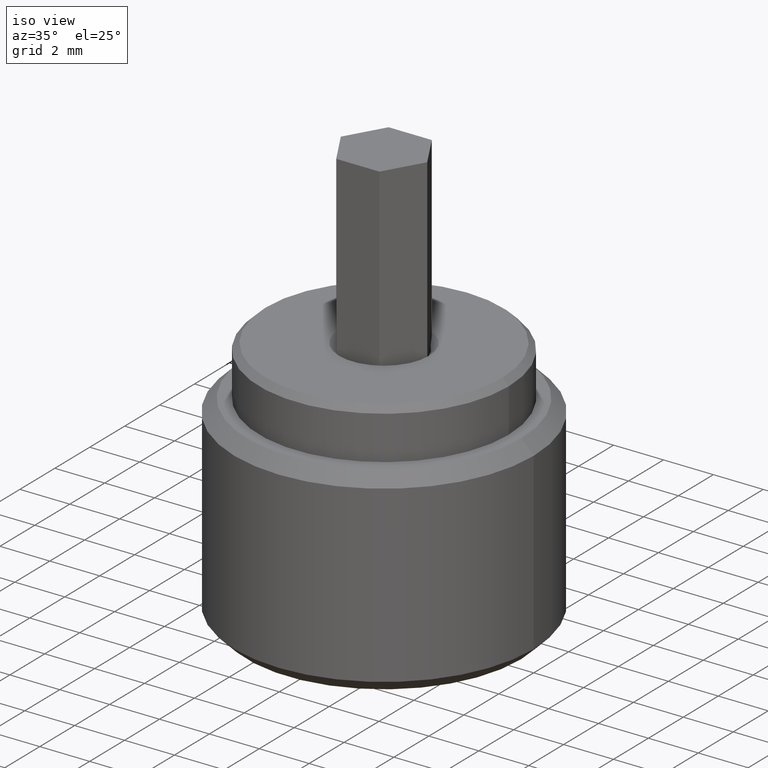
[diagram: clean part render]
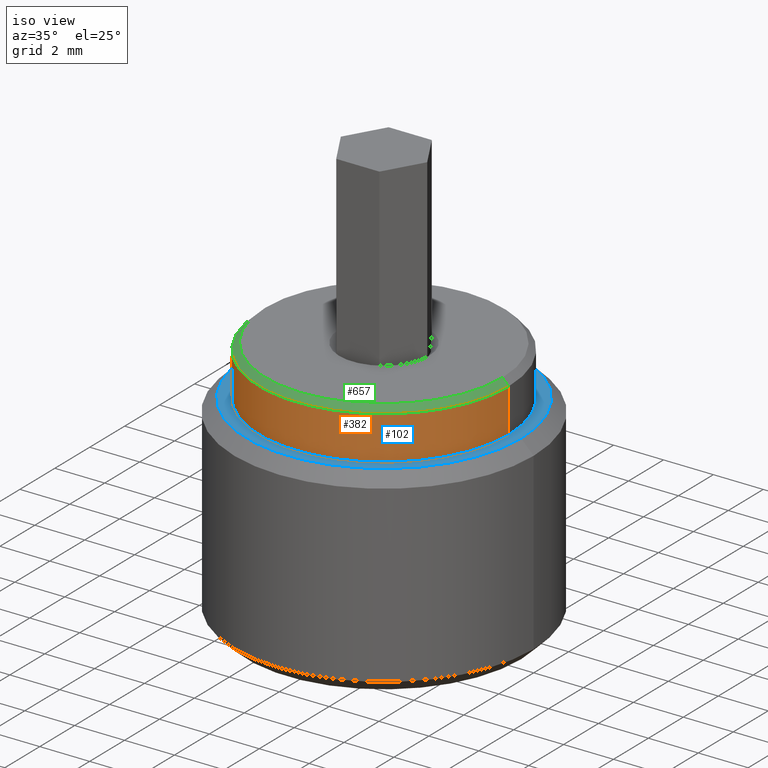
[diagram: same view with three faces highlighted in distinct colors, each labeled with its STEP entity id]
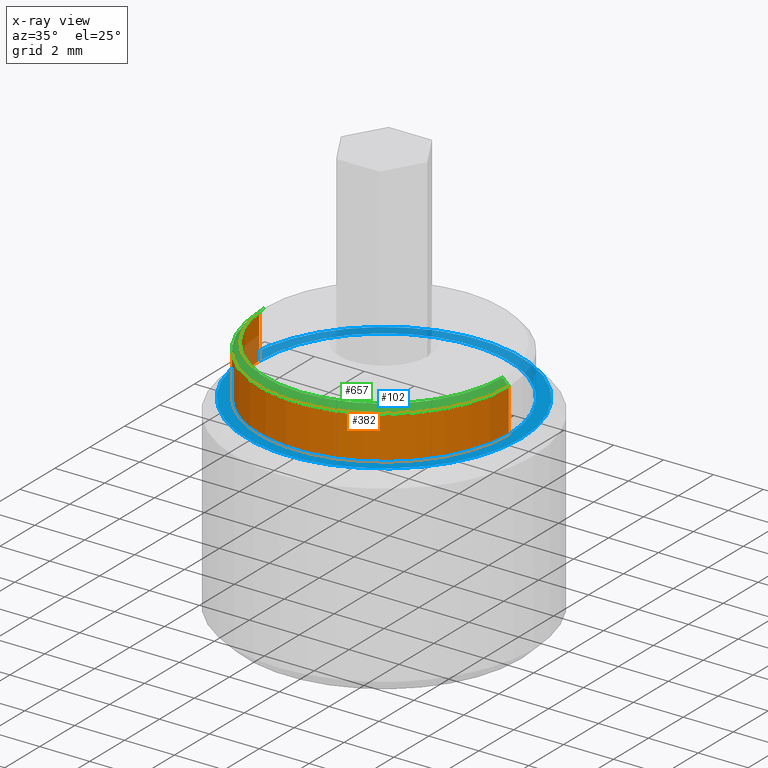
[diagram: x-ray of the same camera — body ghosted, the three highlighted faces saturated]
A machine part, iso view with three faces highlighted in distinct colors.
The next image is the same camera in x-ray (body ghosted, the three faces saturated) — at least one of them is partly hidden behind the body in this view.
Their STEP definitions:

[orange] entity #382 — the highlighted cylindrical surface (partial cylindrical patch) has radius 5 mm, axis along (0, 0, 1).
#32 = DIRECTION ( 'NONE',  ( -0.000000000000000000, -0.000000000000000000, -1.000000000000000000 ) ) ;
#48 = VERTEX_POINT ( 'NONE', #879 ) ;
#79 = EDGE_CURVE ( 'NONE', #891, #48, #868, .T. ) ;
#93 = FACE_OUTER_BOUND ( 'NONE', #972, .T. ) ;
#94 = VERTEX_POINT ( 'NONE', #268 ) ;
#96 = EDGE_CURVE ( 'NONE', #891, #94, #798, .T. ) ;
#155 = EDGE_CURVE ( 'NONE', #94, #441, #818, .T. ) ;
#223 = DIRECTION ( 'NONE',  ( -0.000000000000000000, -0.000000000000000000, 1.000000000000000000 ) ) ;
#231 = ORIENTED_EDGE ( 'NONE', *, *, #903, .F. ) ;
#268 = CARTESIAN_POINT ( 'NONE',  ( 5.000000000000000000, 0.000000000000000000, 9.750000000000005329 ) ) ;
#322 = DIRECTION ( 'NONE',  ( -0.000000000000000000, -0.000000000000000000, 1.000000000000000000 ) ) ;
#332 = AXIS2_PLACEMENT_3D ( 'NONE', #724, #32, #494 ) ;
#355 = ORIENTED_EDGE ( 'NONE', *, *, #96, .T. ) ;
#381 = CARTESIAN_POINT ( 'NONE',  ( 0.000000000000000000, 0.000000000000000000, 9.750000000000005329 ) ) ;
#382 = ADVANCED_FACE ( 'NONE', ( #93 ), #857, .T. ) ;
#393 = DIRECTION ( 'NONE',  ( 0.000000000000000000, 0.000000000000000000, -1.000000000000000000 ) ) ;
#436 = VECTOR ( 'NONE', #897, 1000.000000000000000 ) ;
#441 = VERTEX_POINT ( 'NONE', #794 ) ;
#461 = DIRECTION ( 'NONE',  ( 1.000000000000000000, 0.000000000000000000, 0.000000000000000000 ) ) ;
#494 = DIRECTION ( 'NONE',  ( 1.000000000000000000, 0.000000000000000000, 0.000000000000000000 ) ) ;
#503 = ORIENTED_EDGE ( 'NONE', *, *, #155, .T. ) ;
#528 = CARTESIAN_POINT ( 'NONE',  ( -5.000000000000000000, 6.123233995736765296E-16, -16.97056274847714263 ) ) ;
#578 = ORIENTED_EDGE ( 'NONE', *, *, #79, .F. ) ;
#641 = VECTOR ( 'NONE', #223, 1000.000000000000000 ) ;
#643 = DIRECTION ( 'NONE',  ( 1.000000000000000000, 0.000000000000000000, 0.000000000000000000 ) ) ;
#686 = CARTESIAN_POINT ( 'NONE',  ( 5.000000000000000000, 0.000000000000000000, 8.000000000000000000 ) ) ;
#724 = CARTESIAN_POINT ( 'NONE',  ( 0.000000000000000000, 0.000000000000000000, 8.000000000000000000 ) ) ;
#742 = AXIS2_PLACEMENT_3D ( 'NONE', #943, #322, #643 ) ;
#789 = AXIS2_PLACEMENT_3D ( 'NONE', #381, #393, #461 ) ;
#794 = CARTESIAN_POINT ( 'NONE',  ( -5.000000000000000000, 6.123233995736765296E-16, 9.750000000000005329 ) ) ;
#798 = LINE ( 'NONE', #976, #436 ) ;
#818 = CIRCLE ( 'NONE', #789, 5.000000000000000000 ) ;
#857 = CYLINDRICAL_SURFACE ( 'NONE', #742, 5.000000000000000000 ) ;
#868 = CIRCLE ( 'NONE', #332, 5.000000000000000000 ) ;
#879 = CARTESIAN_POINT ( 'NONE',  ( -5.000000000000000000, 6.123233995736765296E-16, 8.000000000000000000 ) ) ;
#891 = VERTEX_POINT ( 'NONE', #686 ) ;
#897 = DIRECTION ( 'NONE',  ( -0.000000000000000000, -0.000000000000000000, 1.000000000000000000 ) ) ;
#901 = LINE ( 'NONE', #528, #641 ) ;
#903 = EDGE_CURVE ( 'NONE', #48, #441, #901, .T. ) ;
#943 = CARTESIAN_POINT ( 'NONE',  ( 0.000000000000000000, 0.000000000000000000, -16.97056274847714263 ) ) ;
#972 = EDGE_LOOP ( 'NONE', ( #231, #578, #355, #503 ) ) ;
#976 = CARTESIAN_POINT ( 'NONE',  ( 5.000000000000000000, 0.000000000000000000, -16.97056274847714263 ) ) ;

[blue] entity #102 — the highlighted planar face has unit normal (0, 0, 1).
#1 = AXIS2_PLACEMENT_3D ( 'NONE', #619, #220, #88 ) ;
#32 = DIRECTION ( 'NONE',  ( -0.000000000000000000, -0.000000000000000000, -1.000000000000000000 ) ) ;
#38 = ORIENTED_EDGE ( 'NONE', *, *, #138, .T. ) ;
#48 = VERTEX_POINT ( 'NONE', #879 ) ;
#53 = ORIENTED_EDGE ( 'NONE', *, *, #163, .T. ) ;
#79 = EDGE_CURVE ( 'NONE', #891, #48, #868, .T. ) ;
#88 = DIRECTION ( 'NONE',  ( 1.000000000000000000, 0.000000000000000000, 0.000000000000000000 ) ) ;
#102 = ADVANCED_FACE ( 'NONE', ( #728, #286 ), #111, .T. ) ;
#111 = PLANE ( 'NONE',  #627 ) ;
#138 = EDGE_CURVE ( 'NONE', #48, #891, #833, .T. ) ;
#154 = CARTESIAN_POINT ( 'NONE',  ( 0.000000000000000000, 0.000000000000000000, 8.000000000000000000 ) ) ;
#163 = EDGE_CURVE ( 'NONE', #679, #238, #195, .T. ) ;
#195 = CIRCLE ( 'NONE', #1, 5.500000000000000888 ) ;
#211 = DIRECTION ( 'NONE',  ( 0.000000000000000000, 0.000000000000000000, 1.000000000000000000 ) ) ;
#220 = DIRECTION ( 'NONE',  ( 0.000000000000000000, 0.000000000000000000, 1.000000000000000000 ) ) ;
#238 = VERTEX_POINT ( 'NONE', #533 ) ;
#249 = EDGE_LOOP ( 'NONE', ( #596, #38 ) ) ;
#286 = FACE_BOUND ( 'NONE', #249, .T. ) ;
#328 = ORIENTED_EDGE ( 'NONE', *, *, #827, .T. ) ;
#332 = AXIS2_PLACEMENT_3D ( 'NONE', #724, #32, #494 ) ;
#341 = EDGE_LOOP ( 'NONE', ( #328, #53 ) ) ;
#419 = CARTESIAN_POINT ( 'NONE',  ( 0.000000000000000000, 0.000000000000000000, 8.000000000000000000 ) ) ;
#443 = DIRECTION ( 'NONE',  ( 1.000000000000000000, 0.000000000000000000, -0.000000000000000000 ) ) ;
#494 = DIRECTION ( 'NONE',  ( 1.000000000000000000, 0.000000000000000000, 0.000000000000000000 ) ) ;
#533 = CARTESIAN_POINT ( 'NONE',  ( -5.500000000000000888, 0.000000000000000000, 8.000000000000000000 ) ) ;
#544 = DIRECTION ( 'NONE',  ( -0.000000000000000000, -0.000000000000000000, -1.000000000000000000 ) ) ;
#596 = ORIENTED_EDGE ( 'NONE', *, *, #79, .T. ) ;
#605 = CARTESIAN_POINT ( 'NONE',  ( 0.000000000000000000, 0.000000000000000000, 8.000000000000000000 ) ) ;
#619 = CARTESIAN_POINT ( 'NONE',  ( 0.000000000000000000, 0.000000000000000000, 8.000000000000000000 ) ) ;
#627 = AXIS2_PLACEMENT_3D ( 'NONE', #419, #211, #443 ) ;
#679 = VERTEX_POINT ( 'NONE', #821 ) ;
#686 = CARTESIAN_POINT ( 'NONE',  ( 5.000000000000000000, 0.000000000000000000, 8.000000000000000000 ) ) ;
#698 = DIRECTION ( 'NONE',  ( 1.000000000000000000, 0.000000000000000000, 0.000000000000000000 ) ) ;
#724 = CARTESIAN_POINT ( 'NONE',  ( 0.000000000000000000, 0.000000000000000000, 8.000000000000000000 ) ) ;
#728 = FACE_OUTER_BOUND ( 'NONE', #341, .T. ) ;
#779 = DIRECTION ( 'NONE',  ( 1.000000000000000000, 0.000000000000000000, 0.000000000000000000 ) ) ;
#813 = AXIS2_PLACEMENT_3D ( 'NONE', #154, #920, #698 ) ;
#821 = CARTESIAN_POINT ( 'NONE',  ( 5.500000000000000888, 7.041719095097281866E-16, 8.000000000000000000 ) ) ;
#827 = EDGE_CURVE ( 'NONE', #238, #679, #844, .T. ) ;
#833 = CIRCLE ( 'NONE', #898, 5.000000000000000000 ) ;
#844 = CIRCLE ( 'NONE', #813, 5.500000000000000888 ) ;
#868 = CIRCLE ( 'NONE', #332, 5.000000000000000000 ) ;
#879 = CARTESIAN_POINT ( 'NONE',  ( -5.000000000000000000, 6.123233995736765296E-16, 8.000000000000000000 ) ) ;
#891 = VERTEX_POINT ( 'NONE', #686 ) ;
#898 = AXIS2_PLACEMENT_3D ( 'NONE', #605, #544, #779 ) ;
#920 = DIRECTION ( 'NONE',  ( 0.000000000000000000, 0.000000000000000000, 1.000000000000000000 ) ) ;

[green] entity #657 — the highlighted conical surface has half-angle 45 deg.
#31 = DIRECTION ( 'NONE',  ( 0.7071067811865451302, 8.659560562354904508E-17, -0.7071067811865500152 ) ) ;
#54 = CARTESIAN_POINT ( 'NONE',  ( -4.750000000000005329, 0.000000000000000000, 10.00000000000000178 ) ) ;
#57 = ORIENTED_EDGE ( 'NONE', *, *, #155, .F. ) ;
#90 = VERTEX_POINT ( 'NONE', #955 ) ;
#94 = VERTEX_POINT ( 'NONE', #268 ) ;
#126 = FACE_OUTER_BOUND ( 'NONE', #551, .T. ) ;
#140 = VERTEX_POINT ( 'NONE', #837 ) ;
#155 = EDGE_CURVE ( 'NONE', #94, #441, #818, .T. ) ;
#268 = CARTESIAN_POINT ( 'NONE',  ( 5.000000000000000000, 0.000000000000000000, 9.750000000000005329 ) ) ;
#282 = DIRECTION ( 'NONE',  ( -0.7071067811865451302, 0.000000000000000000, -0.7071067811865500152 ) ) ;
#356 = DIRECTION ( 'NONE',  ( 0.000000000000000000, 0.000000000000000000, -1.000000000000000000 ) ) ;
#381 = CARTESIAN_POINT ( 'NONE',  ( 0.000000000000000000, 0.000000000000000000, 9.750000000000005329 ) ) ;
#393 = DIRECTION ( 'NONE',  ( 0.000000000000000000, 0.000000000000000000, -1.000000000000000000 ) ) ;
#399 = AXIS2_PLACEMENT_3D ( 'NONE', #808, #356, #517 ) ;
#418 = CONICAL_SURFACE ( 'NONE', #399, 4.750000000000005329, 0.7853981633974447263 ) ;
#428 = CARTESIAN_POINT ( 'NONE',  ( 0.000000000000000000, 0.000000000000000000, 10.00000000000000000 ) ) ;
#438 = DIRECTION ( 'NONE',  ( 1.000000000000000000, 0.000000000000000000, 0.000000000000000000 ) ) ;
#441 = VERTEX_POINT ( 'NONE', #794 ) ;
#461 = DIRECTION ( 'NONE',  ( 1.000000000000000000, 0.000000000000000000, 0.000000000000000000 ) ) ;
#480 = EDGE_CURVE ( 'NONE', #90, #94, #938, .T. ) ;
#482 = CARTESIAN_POINT ( 'NONE',  ( 4.750000000000005329, 5.817072295949934328E-16, 10.00000000000000178 ) ) ;
#517 = DIRECTION ( 'NONE',  ( -1.000000000000000000, 0.000000000000000000, 0.000000000000000000 ) ) ;
#551 = EDGE_LOOP ( 'NONE', ( #586, #775, #573, #57 ) ) ;
#573 = ORIENTED_EDGE ( 'NONE', *, *, #741, .T. ) ;
#581 = VECTOR ( 'NONE', #31, 1000.000000000000114 ) ;
#586 = ORIENTED_EDGE ( 'NONE', *, *, #480, .F. ) ;
#592 = LINE ( 'NONE', #54, #710 ) ;
#638 = EDGE_CURVE ( 'NONE', #140, #90, #882, .T. ) ;
#657 = ADVANCED_FACE ( 'NONE', ( #126 ), #418, .T. ) ;
#661 = DIRECTION ( 'NONE',  ( 0.000000000000000000, 0.000000000000000000, 1.000000000000000000 ) ) ;
#710 = VECTOR ( 'NONE', #282, 1000.000000000000114 ) ;
#741 = EDGE_CURVE ( 'NONE', #140, #441, #592, .T. ) ;
#775 = ORIENTED_EDGE ( 'NONE', *, *, #638, .F. ) ;
#789 = AXIS2_PLACEMENT_3D ( 'NONE', #381, #393, #461 ) ;
#794 = CARTESIAN_POINT ( 'NONE',  ( -5.000000000000000000, 6.123233995736765296E-16, 9.750000000000005329 ) ) ;
#808 = CARTESIAN_POINT ( 'NONE',  ( 0.000000000000000000, 0.000000000000000000, 10.00000000000000178 ) ) ;
#818 = CIRCLE ( 'NONE', #789, 5.000000000000000000 ) ;
#837 = CARTESIAN_POINT ( 'NONE',  ( -4.750000000000007105, 0.000000000000000000, 10.00000000000000000 ) ) ;
#849 = AXIS2_PLACEMENT_3D ( 'NONE', #428, #661, #438 ) ;
#882 = CIRCLE ( 'NONE', #849, 4.750000000000007105 ) ;
#938 = LINE ( 'NONE', #482, #581 ) ;
#955 = CARTESIAN_POINT ( 'NONE',  ( 4.750000000000007105, 5.970153145843351291E-16, 10.00000000000000000 ) ) ;